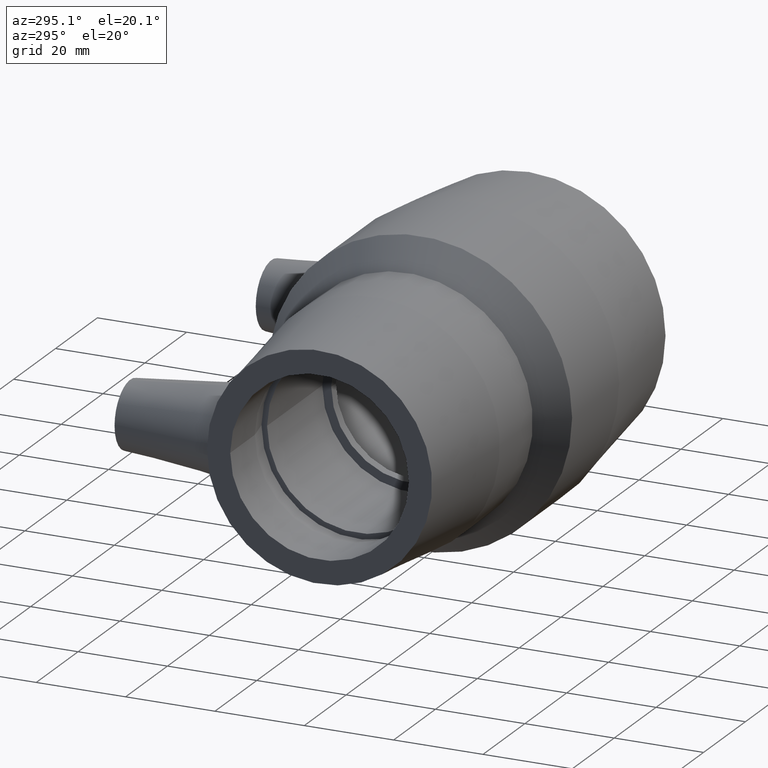
[diagram: clean part render]
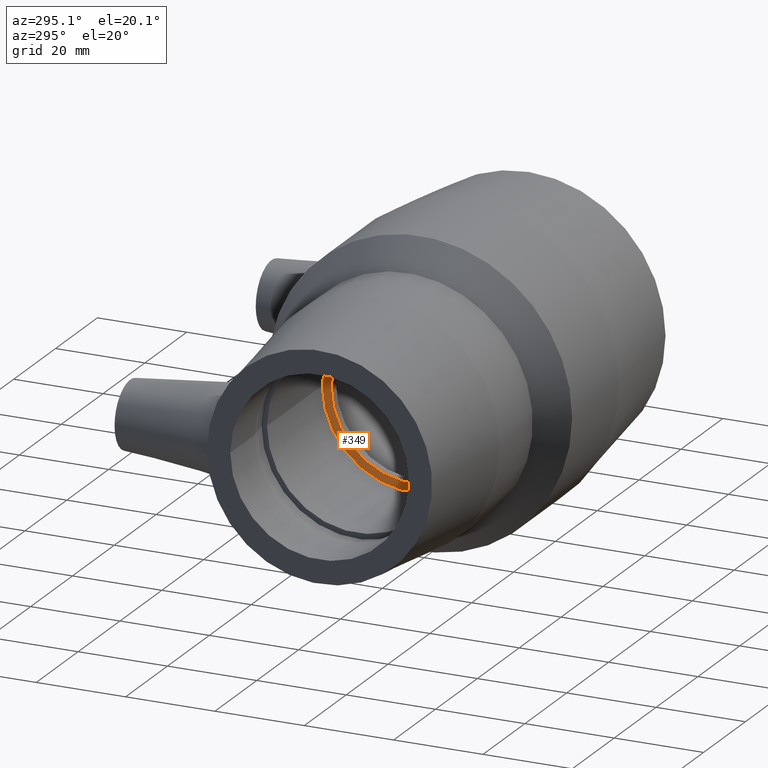
[diagram: same view with one face highlighted and labeled with its STEP entity id]
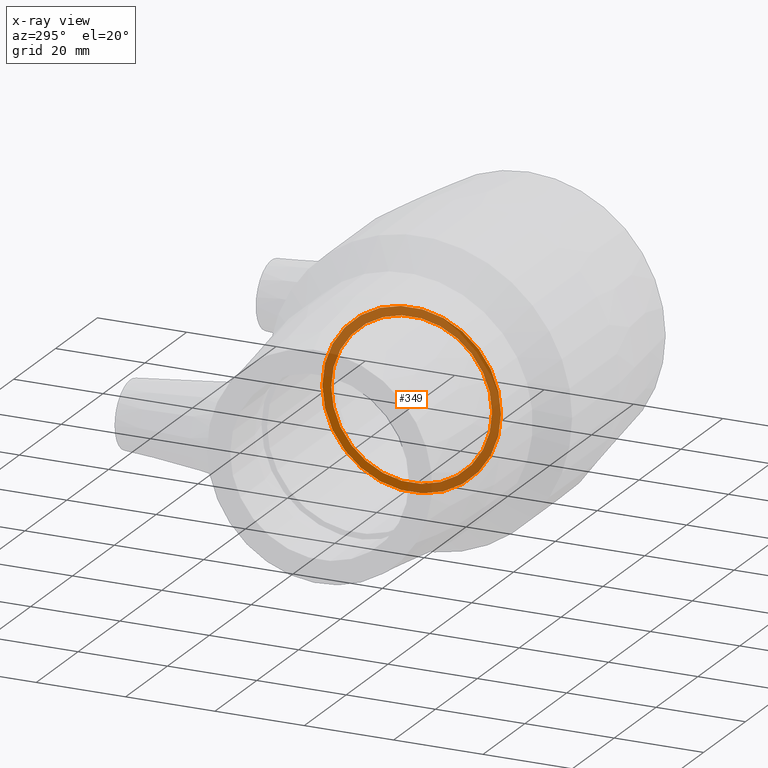
[diagram: x-ray of the same camera — body ghosted, the highlighted face saturated]
A machine part, auxiliary view. The second image highlights one B-rep face of the part: STEP entity #349.
The next image is the same camera in x-ray: the body ghosted, the highlighted face saturated — about 69% of this face is hidden behind the body in this view.
In plain terms, the highlighted planar face has unit normal (-1, -0, 0).
Its self-contained STEP definition (entity closure, byte-faithful):
#48=FACE_BOUND('',#146,.T.);
#91=FACE_OUTER_BOUND('',#145,.T.);
#145=EDGE_LOOP('',(#298));
#146=EDGE_LOOP('',(#299));
#182=CIRCLE('',#404,18.);
#183=CIRCLE('',#406,20.);
#213=VERTEX_POINT('',#679);
#214=VERTEX_POINT('',#682);
#244=EDGE_CURVE('',#213,#213,#182,.T.);
#245=EDGE_CURVE('',#214,#214,#183,.T.);
#298=ORIENTED_EDGE('',*,*,#245,.F.);
#299=ORIENTED_EDGE('',*,*,#244,.T.);
#322=PLANE('',#405);
#349=ADVANCED_FACE('',(#91,#48),#322,.T.);
#404=AXIS2_PLACEMENT_3D('',#680,#512,#513);
#405=AXIS2_PLACEMENT_3D('',#681,#514,#515);
#406=AXIS2_PLACEMENT_3D('',#683,#516,#517);
#512=DIRECTION('center_axis',(1.,1.83697019872103E-16,0.));
#513=DIRECTION('ref_axis',(0.,0.,-1.));
#514=DIRECTION('center_axis',(-1.,-1.83697019872103E-16,0.));
#515=DIRECTION('ref_axis',(0.,0.,1.));
#516=DIRECTION('center_axis',(1.,1.83697019872103E-16,0.));
#517=DIRECTION('ref_axis',(0.,0.,-1.));
#679=CARTESIAN_POINT('',(-6.,18.,0.));
#680=CARTESIAN_POINT('Origin',(-5.99999999999999,8.08266887437253E-15,0.));
#681=CARTESIAN_POINT('Origin',(-6.,20.,0.));
#682=CARTESIAN_POINT('',(-6.,20.,0.));
#683=CARTESIAN_POINT('Origin',(-5.99999999999999,8.08266887437253E-15,0.));